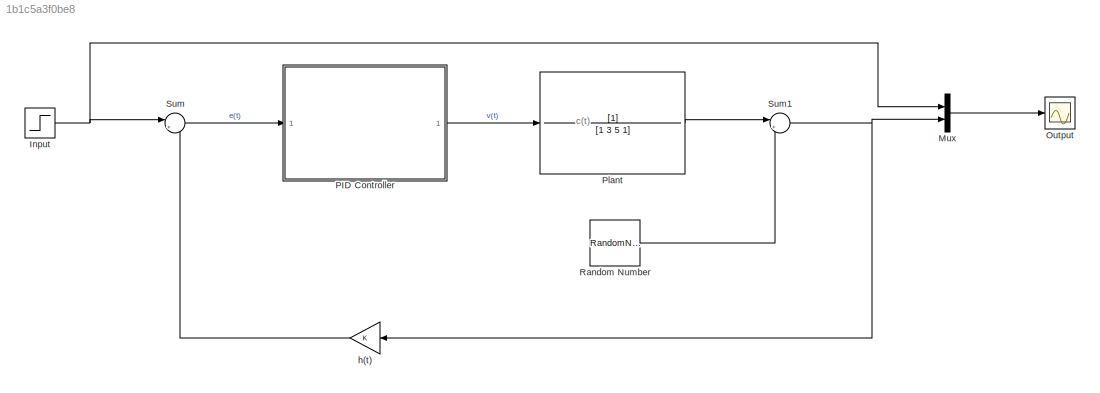
MODEL slx_1b1c5a3f0be8
KIND model
CONFIG AbsTol = auto
CONFIG EnableMultiTasking = off
CONFIG FixedStep = auto
CONFIG MaxStep = auto
CONFIG MinStep = auto
CONFIG RelTol = 1e-3
CONFIG SampleTimeConstraint = Unconstrained
CONFIG SolverName = VariableStepAuto
CONFIG StartTime = 0.0
CONFIG StopTime = 50
BLOCK [Step] Input
  SampleTime = 0
  Time = 2
BLOCK [Mux] Mux
  DisplayOption = bar
  Inputs = 2
BLOCK [Scope] Output
  Floating = off
  NumInputPorts = 1
  ScopeSpecificationString = Simulink.scopes.TimeScopeBlockCfg('CurrentConfiguration', extmgr.ConfigurationSet(extmgr.Configuration('Core','General UI',true),extmgr.Configuration('Core','Source UI',true),extmgr.Configuration('Sources','WiredSimulink',true),extmgr.Configuration('Visuals','Time Domain',true,'SerializedDisplays',{struct('MinYLimReal','-0.20262','MaxYLimReal','2.03206','YLabelReal','','MinYLimMag','0.00000','MaxY...<+1714ch>
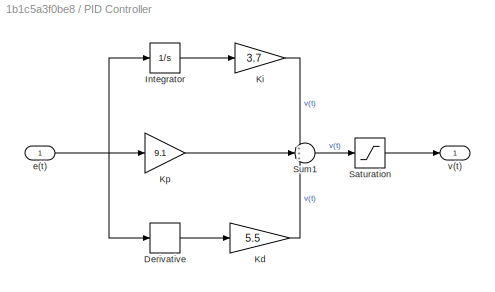
BLOCK [SubSystem] PID Controller
BLOCK [Derivative] PID Controller/Derivative
BLOCK [Integrator] PID Controller/Integrator
BLOCK [Gain] PID Controller/Kd
  Gain = 5.5
BLOCK [Gain] PID Controller/Ki
  Gain = 3.7
BLOCK [Gain] PID Controller/Kp
  Gain = 9.1
BLOCK [Saturate] PID Controller/Saturation
  LowerLimit = -10
  UpperLimit = 10
BLOCK [Sum] PID Controller/Sum1
  Inputs = +++
BLOCK [Inport] PID Controller/e(t)
BLOCK [Outport] PID Controller/v(t)
BLOCK [TransferFcn] Plant
  Denominator = [1 3 5 1]
BLOCK [RandomNumber] Random Number
  SampleTime = 5
  Variance = 0.001
BLOCK [Sum] Sum
  Inputs = |+-
BLOCK [Sum] Sum1
  Inputs = |++
BLOCK [Gain] h(t)
  NameLocation = top
ANNOTATION (root): c(t)
NET Input:1 -> Mux:1, Sum:1
LINE Mux:1 -> Output:1
LINE PID Controller/Derivative:1 -> PID Controller/Kd:1
LINE PID Controller/Integrator:1 -> PID Controller/Ki:1
LINE PID Controller/Kd:1 -> PID Controller/Sum1:3
LINE PID Controller/Ki:1 -> PID Controller/Sum1:1
LINE PID Controller/Kp:1 -> PID Controller/Sum1:2
LINE PID Controller/Saturation:1 -> PID Controller/v(t):1
LINE PID Controller/Sum1:1 -> PID Controller/Saturation:1
NET PID Controller/e(t):1 -> PID Controller/Derivative:1, PID Controller/Integrator:1, PID Controller/Kp:1
LINE PID Controller:1 -> Plant:1
LINE Plant:1 -> Sum1:1
LINE Random Number:1 -> Sum1:2
NET Sum1:1 -> Mux:2, h(t):1
LINE Sum:1 -> PID Controller:1
LINE h(t):1 -> Sum:2
note: NET lines group one-source signal fan-out (src -> all destinations, sorted); 1:1 wires keep LINE
